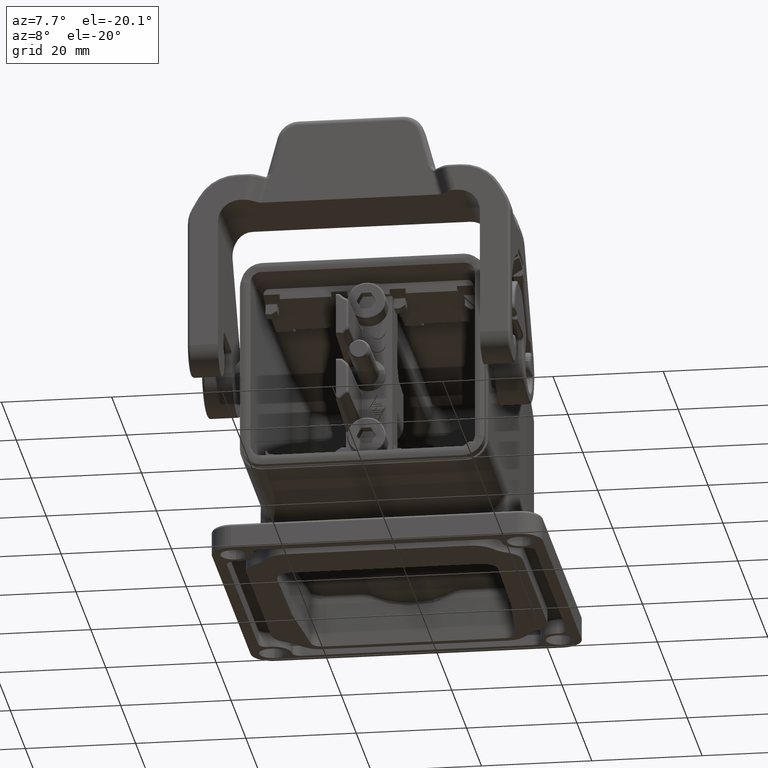
[diagram: clean part render]
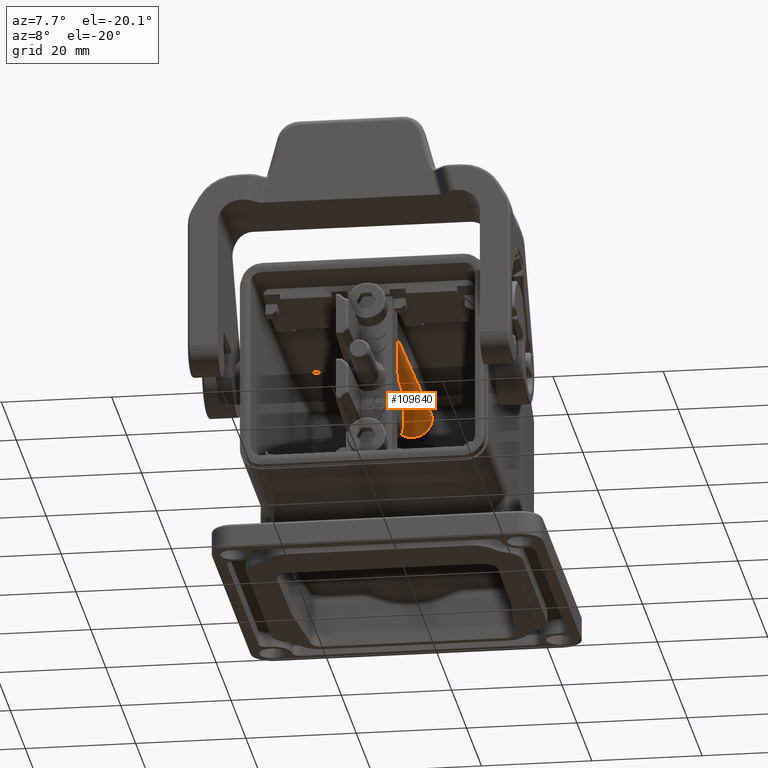
[diagram: same view with one face highlighted and labeled with its STEP entity id]
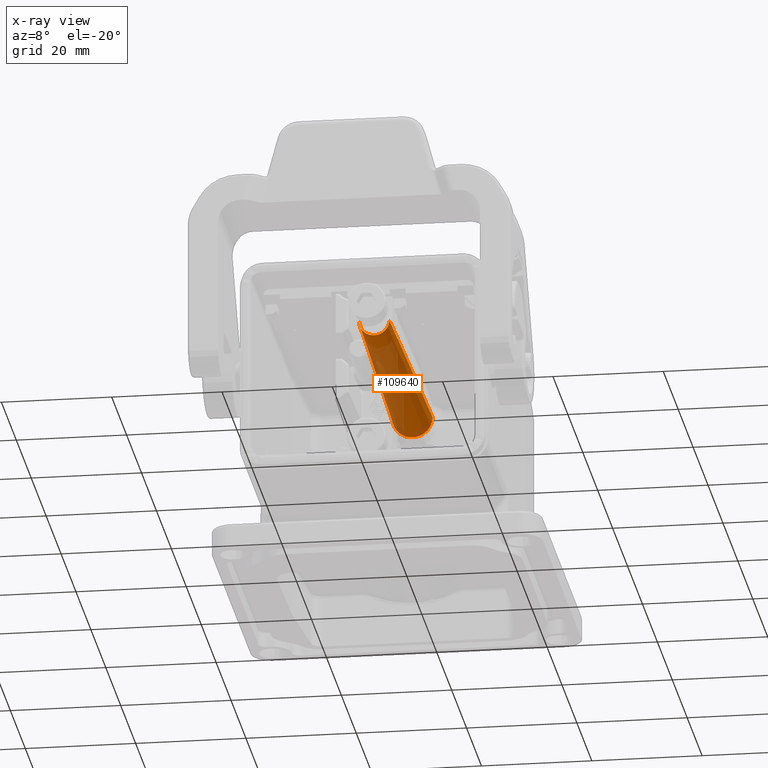
[diagram: x-ray of the same camera — body ghosted, the highlighted face saturated]
A machine part, auxiliary view. The second image highlights one B-rep face of the part: STEP entity #109640.
The next image is the same camera in x-ray: the body ghosted, the highlighted face saturated — about 44% of this face is hidden behind the body in this view.
In plain terms, the highlighted conical surface has half-angle 1 deg.
Its self-contained STEP definition (entity closure, byte-faithful):
#74160=CARTESIAN_POINT('',(41.8283729292166,52.3090137437259,
99.3000000000002));
#74170=VERTEX_POINT('',#74160);
#74200=CARTESIAN_POINT('',(41.8283729292166,59.6000162562713,
99.3000000000002));
#74210=CARTESIAN_POINT('',(41.8263900216565,59.6000508680515,
99.2266400374635));
#74220=CARTESIAN_POINT('',(41.8244075590541,59.5978711064146,
99.1532957580584));
#74230=CARTESIAN_POINT('',(41.8215737831239,59.5915842463269,
99.0484548117055));
#74240=CARTESIAN_POINT('',(41.8207197213409,59.5892760460935,
99.0168570284574));
#74250=CARTESIAN_POINT('',(41.8117581917555,59.5607039263289,
98.6853052338285));
#74260=CARTESIAN_POINT('',(41.8037680243386,59.4977887050401,
98.389678601171));
#74270=CARTESIAN_POINT('',(41.7883886693707,59.3006953666269,
97.8206391242584));
#74280=CARTESIAN_POINT('',(41.7810585841246,59.1672743929007,
97.5494131285519));
#74290=CARTESIAN_POINT('',(41.7674539063044,58.8367988884285,
97.0459998476784));
#74300=CARTESIAN_POINT('',(41.7612314372101,58.6410262410658,
96.8157413631843));
#74310=CARTESIAN_POINT('',(41.7502295830079,58.1973196846882,
96.4086146846564));
#74320=CARTESIAN_POINT('',(41.7454925297317,57.951094448426,
96.2333130731531));
#74330=CARTESIAN_POINT('',(41.7377629008143,57.4211527225985,
95.947262332189));
#74340=CARTESIAN_POINT('',(41.734800051648,57.1394796946818,
95.8376133600857));
#74350=CARTESIAN_POINT('',(41.730813733763,56.5555953125492,
95.6900870975246));
#74360=CARTESIAN_POINT('',(41.7298056238011,56.2556362396915,
95.6527782450117));
#74370=CARTESIAN_POINT('',(41.7298056238011,55.9545149999986,
95.6527782450117));
#74380=CARTESIAN_POINT('',(41.7298056238011,55.5358218131195,
95.6527782450117));
#74390=CARTESIAN_POINT('',(41.7317545869825,55.1202601574333,
95.7249071792574));
#74400=CARTESIAN_POINT('',(41.7383096971055,54.4424609807007,
95.9674974296981));
#74410=CARTESIAN_POINT('',(41.7419917389819,54.172534787084,
96.1037604275079));
#74420=CARTESIAN_POINT('',(41.7510657469296,53.6723856327083,
96.4395570896813));
#74430=CARTESIAN_POINT('',(41.7564227571691,53.4440911897542,
96.6377970877715));
#74440=CARTESIAN_POINT('',(41.7685321470788,53.0414786702121,
97.0858981872098));
#74450=CARTESIAN_POINT('',(41.7752380237186,52.8687161175658,
97.3340383878705));
#74460=CARTESIAN_POINT('',(41.7896448178603,52.5881854639988,
97.8671175497277));
#74470=CARTESIAN_POINT('',(41.7972903188916,52.4814967288146,
98.1500059272781));
#74480=CARTESIAN_POINT('',(41.8108640528913,52.3602533139092,
98.6522214961433));
#74490=CARTESIAN_POINT('',(41.8166306786571,52.3283975030384,
98.865575175801));
#74500=CARTESIAN_POINT('',(41.824412073709,52.3111539298615,
99.1534627814335));
#74510=CARTESIAN_POINT('',(41.8263922767901,52.3089791713092,
99.2267234556839));
#74520=CARTESIAN_POINT('',(41.8283729292166,52.3090137437259,
99.3000000000002));
#74530=B_SPLINE_CURVE_WITH_KNOTS('',3,(#74200,#74210,#74220,#74230,
#74240,#74250,#74260,#74270,#74280,#74290,#74300,#74310,#74320,#74330,
#74340,#74350,#74360,#74370,#74380,#74390,#74400,#74410,#74420,#74430,
#74440,#74450,#74460,#74470,#74480,#74490,#74500,#74510,#74520),
.UNSPECIFIED.,.F.,.F.,(4,2,2,2,2,2,2,2,3,2,2,2,2,2,2,4),(0.,
0.280019418957569,0.40090238276332,1.54934029752978,2.69778133864455,
3.84601934943118,4.99424238531959,6.14242589730313,7.29060043821685,
8.88707653346423,10.0356907723524,11.1843206067861,12.3330582531913,
13.4818005900039,14.3036354774315,14.5835707106993),.UNSPECIFIED.);
#74540=CARTESIAN_POINT('',(41.8283729292166,59.600016256271,
99.3000000000002));
#74550=VERTEX_POINT('',#74540);
#74560=EDGE_CURVE('',#74550,#74170,#74530,.T.);
#81290=CARTESIAN_POINT('',(93.1316055413771,58.7045149999986,
99.3000000000002));
#81300=VERTEX_POINT('',#81290);
#81330=CARTESIAN_POINT('',(93.1316055413771,55.9545149999986,
99.3000000000002));
#81340=DIRECTION('',(-1.,-5.55111512312578E-17,-4.51002530435124E-17));
#81350=DIRECTION('',(5.55111512312578E-17,-1.,3.08148791101958E-33));
#81360=AXIS2_PLACEMENT_3D('',#81330,#81340,#81350);
#81370=CIRCLE('',#81360,2.75);
#81380=CARTESIAN_POINT('',(93.1316055413771,53.2045149999986,
99.3000000000002));
#81390=VERTEX_POINT('',#81380);
#81400=EDGE_CURVE('',#81300,#81390,#81370,.T.);
#105070=CARTESIAN_POINT('',(93.1316055413772,53.2045149999986,
99.3000000000002));
#105080=DIRECTION('',(-0.999847695156391,-0.0174524064372836,
-9.01867681130517E-17));
#105090=VECTOR('',#105080,157.571393371013);
#105100=LINE('',#105070,#105090);
#105110=EDGE_CURVE('',#81390,#74170,#105100,.T.);
#109480=CARTESIAN_POINT('',(93.1316055413772,55.9545149999986,
99.3000000000002));
#109490=DIRECTION('',(-1.,-4.51002530435124E-17,0.));
#109500=DIRECTION('',(5.55111512312578E-17,-1.,3.08148791101958E-33));
#109510=AXIS2_PLACEMENT_3D('',#109480,#109490,#109500);
#109520=CONICAL_SURFACE('',#109510,2.75,0.0174532925199433);
#109530=ORIENTED_EDGE('',*,*,#105110,.T.);
#109540=ORIENTED_EDGE('',*,*,#81400,.T.);
#109550=CARTESIAN_POINT('',(93.1316055413772,58.7045149999986,
99.3000000000002));
#109560=DIRECTION('',(-0.999847695156391,0.0174524064372835,
-9.01867681130517E-17));
#109570=VECTOR('',#109560,157.571393371013);
#109580=LINE('',#109550,#109570);
#109590=EDGE_CURVE('',#81300,#74550,#109580,.T.);
#109600=ORIENTED_EDGE('',*,*,#109590,.F.);
#109610=ORIENTED_EDGE('',*,*,#74560,.F.);
#109620=EDGE_LOOP('',(#109610,#109600,#109540,#109530));
#109630=FACE_OUTER_BOUND('',#109620,.T.);
#109640=ADVANCED_FACE('',(#109630),#109520,.T.);